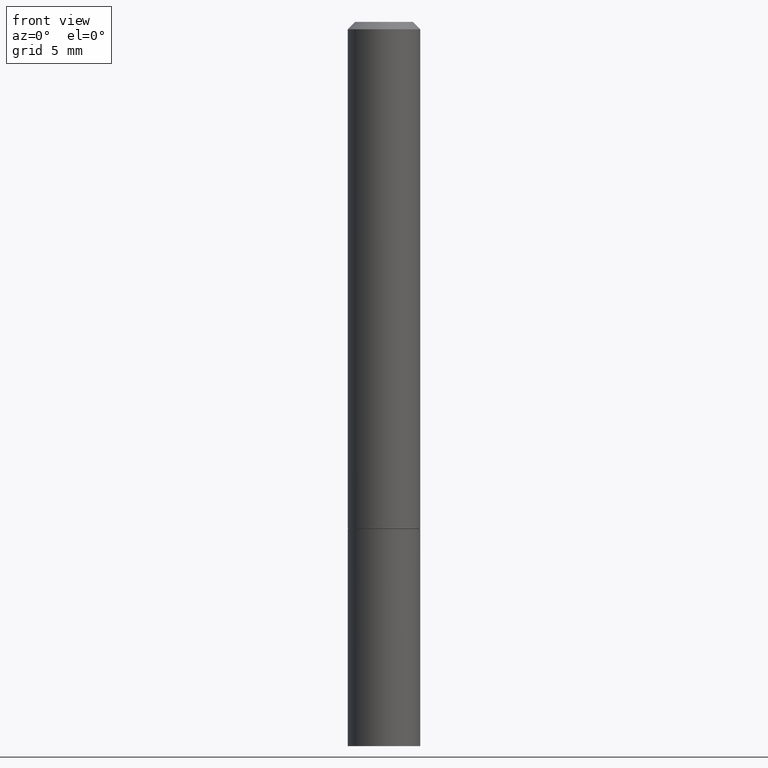
[diagram: clean part render]
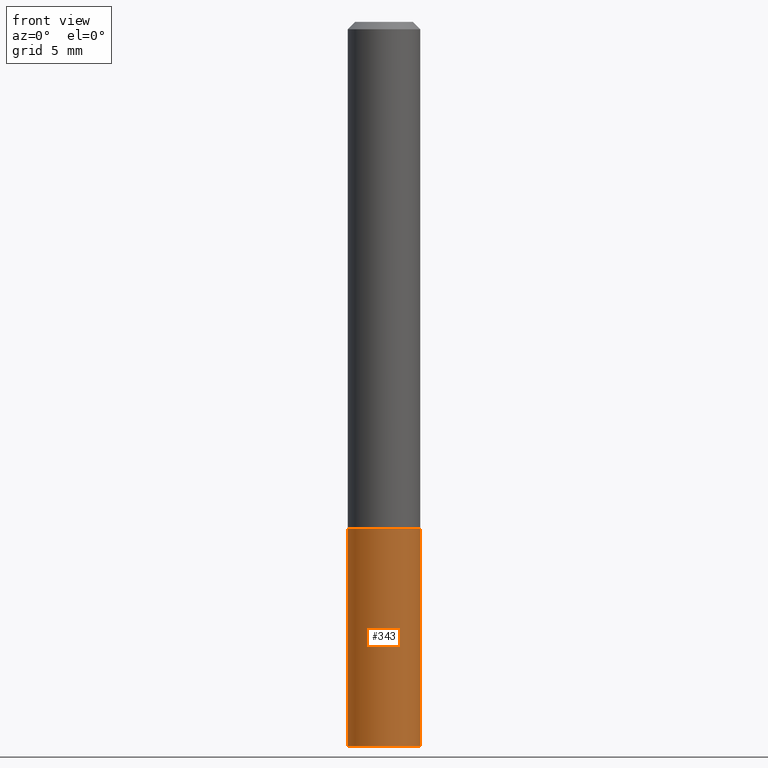
[diagram: same view with one face highlighted and labeled with its STEP entity id]
A machine part, front view. The second image highlights one B-rep face of the part: STEP entity #343.
In plain terms, the highlighted cylindrical surface (edge-blend (fillet) strip) has radius 2.5006 mm, axis along (-0, 0, 1).
Its self-contained STEP definition (entity closure, byte-faithful):
#10 = CARTESIAN_POINT ( 'NONE',  ( -0.09844999999999999585, -5.142417252796532568E-15, -1.968500000000000139 ) ) ;
#24 = CIRCLE ( 'NONE', #101, 0.09844999999999999585 ) ;
#26 = DIRECTION ( 'NONE',  ( 1.000000000000000000, -6.982962677686266711E-15, 4.876176775795936353E-29 ) ) ;
#47 = EDGE_LOOP ( 'NONE', ( #308, #354, #105, #50 ) ) ;
#50 = ORIENTED_EDGE ( 'NONE', *, *, #130, .F. ) ;
#65 = VECTOR ( 'NONE', #131, 39.37007874015748143 ) ;
#68 = CARTESIAN_POINT ( 'NONE',  ( 4.813905344975441835E-29, -6.872981015512731707E-15, -1.968500000000000139 ) ) ;
#85 = CIRCLE ( 'NONE', #318, 0.09844999999999999585 ) ;
#90 = DIRECTION ( 'NONE',  ( -2.445468806185136597E-29, 3.491481338843145583E-15, 1.000000000000000000 ) ) ;
#101 = AXIS2_PLACEMENT_3D ( 'NONE', #261, #90, #118 ) ;
#105 = ORIENTED_EDGE ( 'NONE', *, *, #264, .T. ) ;
#113 = DIRECTION ( 'NONE',  ( -2.445468806185136877E-29, 3.491481338843145188E-15, 1.000000000000000000 ) ) ;
#115 = CARTESIAN_POINT ( 'NONE',  ( 0.09844999999999999585, -7.560453691130944267E-15, -1.968500000000000139 ) ) ;
#118 = DIRECTION ( 'NONE',  ( 1.000000000000000000, -6.982962677686265922E-15, 0.000000000000000000 ) ) ;
#125 = CARTESIAN_POINT ( 'NONE',  ( 0.000000000000000000, 0.000000000000000000, 0.000000000000000000 ) ) ;
#130 = EDGE_CURVE ( 'NONE', #139, #353, #24, .T. ) ;
#131 = DIRECTION ( 'NONE',  ( -2.445468806185136877E-29, 3.491481338843145188E-15, 1.000000000000000000 ) ) ;
#139 = VERTEX_POINT ( 'NONE', #172 ) ;
#145 = LINE ( 'NONE', #288, #359 ) ;
#150 = EDGE_CURVE ( 'NONE', #223, #139, #145, .T. ) ;
#151 = DIRECTION ( 'NONE',  ( -2.445468806185136597E-29, 3.491481338843145583E-15, 1.000000000000000000 ) ) ;
#158 = CARTESIAN_POINT ( 'NONE',  ( 0.09844999999999999585, -6.874726756182129545E-16, 4.800596035771099214E-30 ) ) ;
#160 = VERTEX_POINT ( 'NONE', #115 ) ;
#172 = CARTESIAN_POINT ( 'NONE',  ( -0.09844999999999999585, -5.142417252796532568E-15, -1.377900000000000125 ) ) ;
#189 = CARTESIAN_POINT ( 'NONE',  ( 0.09844999999999999585, -5.498384812410182999E-15, -1.377900000000000125 ) ) ;
#211 = DIRECTION ( 'NONE',  ( -2.445468806185136597E-29, 3.491481338843145583E-15, 1.000000000000000000 ) ) ;
#223 = VERTEX_POINT ( 'NONE', #10 ) ;
#249 = EDGE_CURVE ( 'NONE', #223, #160, #85, .T. ) ;
#261 = CARTESIAN_POINT ( 'NONE',  ( 3.369611468042499724E-29, -4.810912136791970439E-15, -1.377900000000000125 ) ) ;
#264 = EDGE_CURVE ( 'NONE', #160, #353, #357, .T. ) ;
#268 = FACE_OUTER_BOUND ( 'NONE', #47, .T. ) ;
#288 = CARTESIAN_POINT ( 'NONE',  ( -0.09844999999999999585, 6.995293233558186035E-16, -4.842691596355954042E-30 ) ) ;
#304 = AXIS2_PLACEMENT_3D ( 'NONE', #125, #211, #26 ) ;
#308 = ORIENTED_EDGE ( 'NONE', *, *, #150, .F. ) ;
#318 = AXIS2_PLACEMENT_3D ( 'NONE', #68, #151, #355 ) ;
#325 = CYLINDRICAL_SURFACE ( 'NONE', #304, 0.09844999999999999585 ) ;
#343 = ADVANCED_FACE ( 'NONE', ( #268 ), #325, .T. ) ;
#353 = VERTEX_POINT ( 'NONE', #189 ) ;
#354 = ORIENTED_EDGE ( 'NONE', *, *, #249, .T. ) ;
#355 = DIRECTION ( 'NONE',  ( 1.000000000000000000, -6.982962677686265922E-15, 0.000000000000000000 ) ) ;
#357 = LINE ( 'NONE', #158, #65 ) ;
#359 = VECTOR ( 'NONE', #113, 39.37007874015748143 ) ;